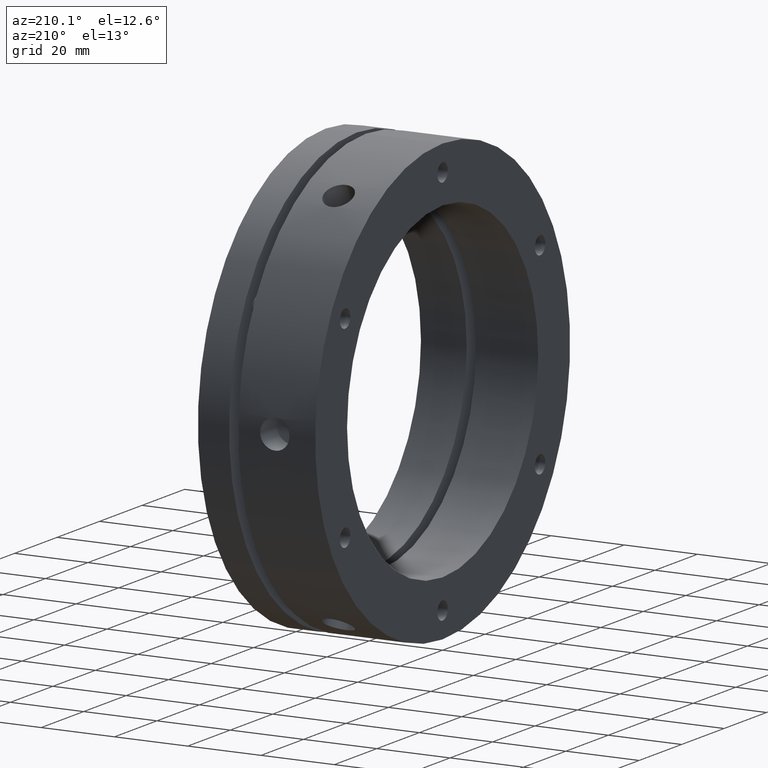
[diagram: clean part render]
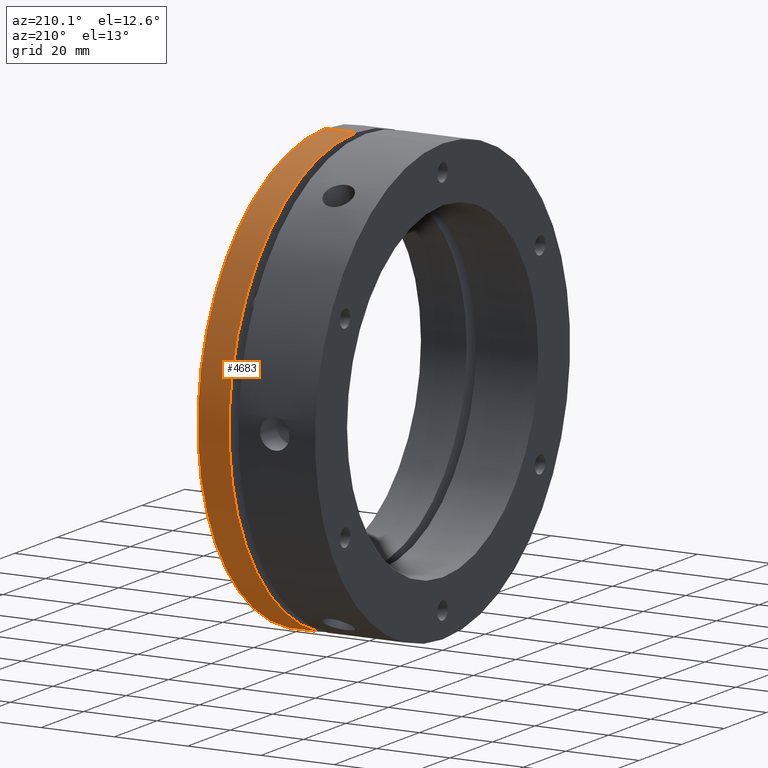
[diagram: same view with one face highlighted and labeled with its STEP entity id]
A machine part, auxiliary view. The second image highlights one B-rep face of the part: STEP entity #4683.
In plain terms, the highlighted cylindrical surface (partial cylindrical patch) has radius 60 mm, axis along (1, 0, 0).
Its self-contained STEP definition (entity closure, byte-faithful):
#164 = CARTESIAN_POINT ( 'NONE',  ( 31.99999999999998600, 0.0000000000000000000, -60.00000000000000000 ) ) ;
#165 = CARTESIAN_POINT ( 'NONE',  ( 31.99999999999998600, 7.347880794884118400E-015, 60.00000000000000000 ) ) ;
#168 = CARTESIAN_POINT ( 'NONE',  ( 23.49999999999999300, 7.347880794884118400E-015, 60.00000000000000000 ) ) ;
#171 = CARTESIAN_POINT ( 'NONE',  ( 23.49999999999999300, 0.0000000000000000000, -60.00000000000000000 ) ) ;
#245 = ORIENTED_EDGE ( 'NONE', *, *, #4532, .T. ) ;
#330 = ORIENTED_EDGE ( 'NONE', *, *, #4534, .T. ) ;
#346 = ORIENTED_EDGE ( 'NONE', *, *, #4538, .F. ) ;
#348 = ORIENTED_EDGE ( 'NONE', *, *, #4536, .T. ) ;
#439 = EDGE_LOOP ( 'NONE', ( #245, #330, #348, #346 ) ) ;
#690 = AXIS2_PLACEMENT_3D ( 'NONE', #3150, #3148, #3146 ) ;
#775 = AXIS2_PLACEMENT_3D ( 'NONE', #1975, #1976, #1977 ) ;
#777 = AXIS2_PLACEMENT_3D ( 'NONE', #1963, #1964, #1965 ) ;
#1961 = DIRECTION ( 'NONE',  ( 1.000000000000000000, 0.0000000000000000000, 0.0000000000000000000 ) ) ;
#1962 = CARTESIAN_POINT ( 'NONE',  ( 15.99999999999998600, 7.347880794884118400E-015, 60.00000000000000000 ) ) ;
#1963 = CARTESIAN_POINT ( 'NONE',  ( 23.49999999999999300, 0.0000000000000000000, 0.0000000000000000000 ) ) ;
#1964 = DIRECTION ( 'NONE',  ( 1.000000000000000000, 0.0000000000000000000, 0.0000000000000000000 ) ) ;
#1965 = DIRECTION ( 'NONE',  ( 0.0000000000000000000, 0.0000000000000000000, -1.000000000000000000 ) ) ;
#1974 = CARTESIAN_POINT ( 'NONE',  ( 15.99999999999998600, 0.0000000000000000000, -60.00000000000000000 ) ) ;
#1975 = CARTESIAN_POINT ( 'NONE',  ( 31.99999999999998600, 0.0000000000000000000, 0.0000000000000000000 ) ) ;
#1976 = DIRECTION ( 'NONE',  ( -1.000000000000000000, -0.0000000000000000000, -0.0000000000000000000 ) ) ;
#1977 = DIRECTION ( 'NONE',  ( 0.0000000000000000000, 0.0000000000000000000, -1.000000000000000000 ) ) ;
#1978 = DIRECTION ( 'NONE',  ( 1.000000000000000000, 0.0000000000000000000, 0.0000000000000000000 ) ) ;
#2448 = CIRCLE ( 'NONE', #777, 60.00000000000000000 ) ;
#2450 = CIRCLE ( 'NONE', #775, 60.00000000000000000 ) ;
#2451 = LINE ( 'NONE', #1962, #2453 ) ;
#2453 = VECTOR ( 'NONE', #1961, 1000.000000000000000 ) ;
#2454 = LINE ( 'NONE', #1974, #2460 ) ;
#2460 = VECTOR ( 'NONE', #1978, 1000.000000000000000 ) ;
#2652 = FACE_OUTER_BOUND ( 'NONE', #439, .T. ) ;
#2661 = CYLINDRICAL_SURFACE ( 'NONE', #690, 60.00000000000000000 ) ;
#3146 = DIRECTION ( 'NONE',  ( 0.0000000000000000000, 0.0000000000000000000, -1.000000000000000000 ) ) ;
#3148 = DIRECTION ( 'NONE',  ( 1.000000000000000000, 0.0000000000000000000, 0.0000000000000000000 ) ) ;
#3150 = CARTESIAN_POINT ( 'NONE',  ( 15.99999999999998600, 0.0000000000000000000, 0.0000000000000000000 ) ) ;
#3888 = VERTEX_POINT ( 'NONE', #164 ) ;
#3889 = VERTEX_POINT ( 'NONE', #165 ) ;
#3892 = VERTEX_POINT ( 'NONE', #168 ) ;
#3895 = VERTEX_POINT ( 'NONE', #171 ) ;
#4532 = EDGE_CURVE ( 'NONE', #3895, #3892, #2448, .T. ) ;
#4534 = EDGE_CURVE ( 'NONE', #3892, #3889, #2451, .T. ) ;
#4536 = EDGE_CURVE ( 'NONE', #3889, #3888, #2450, .T. ) ;
#4538 = EDGE_CURVE ( 'NONE', #3895, #3888, #2454, .T. ) ;
#4683 = ADVANCED_FACE ( 'NONE', ( #2652 ), #2661, .T. ) ;